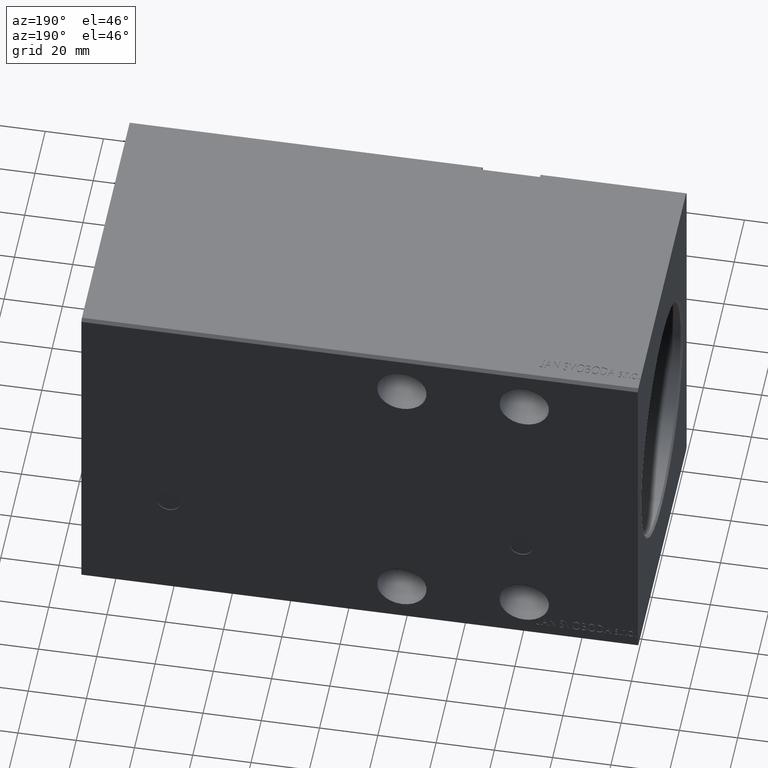
[diagram: clean part render]
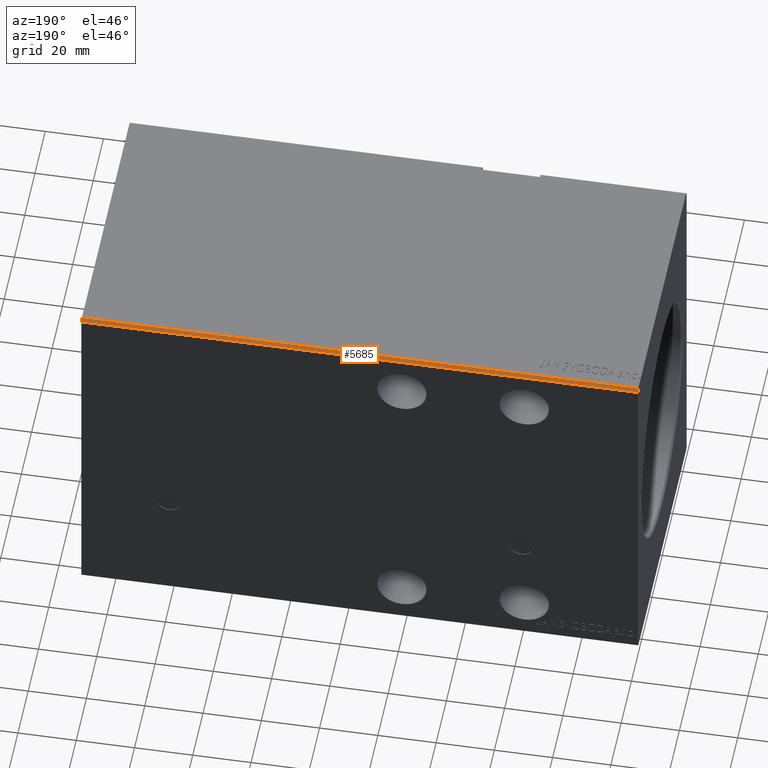
[diagram: same view with one face highlighted and labeled with its STEP entity id]
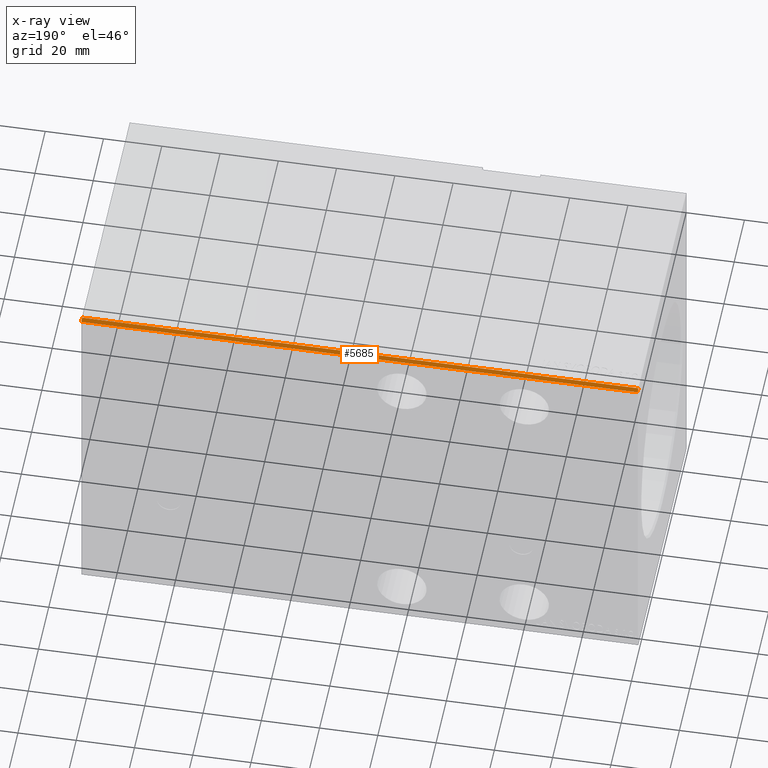
[diagram: x-ray of the same camera — body ghosted, the highlighted face saturated]
A machine part, auxiliary view. The second image highlights one B-rep face of the part: STEP entity #5685.
The next image is the same camera in x-ray: the body ghosted, the highlighted face saturated — about 0% of this face is hidden behind the body in this view.
In plain terms, the highlighted planar face has unit normal (0, -0.7071, -0.7071).
Its self-contained STEP definition (entity closure, byte-faithful):
#367 = ORIENTED_EDGE ( 'NONE', *, *, #39077, .F. ) ;
#607 = LINE ( 'NONE', #13579, #9433 ) ;
#820 = DIRECTION ( 'NONE',  ( -1.000000000000000000, -0.000000000000000000, -0.000000000000000000 ) ) ;
#1401 = CARTESIAN_POINT ( 'NONE',  ( 0.000000000000000000, 47.50000000000000000, 61.49999999999998579 ) ) ;
#1772 = DIRECTION ( 'NONE',  ( -1.000000000000000000, -0.000000000000000000, -0.000000000000000000 ) ) ;
#2018 = DIRECTION ( 'NONE',  ( 0.000000000000000000, -0.7071067811865474617, 0.7071067811865474617 ) ) ;
#5685 = ADVANCED_FACE ( 'NONE', ( #35435 ), #6316, .F. ) ;
#6316 = PLANE ( 'NONE',  #13214 ) ;
#6744 = CARTESIAN_POINT ( 'NONE',  ( 191.0000000000000000, 47.50000000000000000, 61.49999999999998579 ) ) ;
#6915 = DIRECTION ( 'NONE',  ( 0.000000000000000000, -0.7071067811865474617, 0.7071067811865474617 ) ) ;
#9262 = CARTESIAN_POINT ( 'NONE',  ( 191.0000000000000000, 47.50000000000000000, 61.49999999999998579 ) ) ;
#9433 = VECTOR ( 'NONE', #820, 1000.000000000000000 ) ;
#13214 = AXIS2_PLACEMENT_3D ( 'NONE', #6744, #19312, #22265 ) ;
#13300 = LINE ( 'NONE', #9262, #21956 ) ;
#13401 = EDGE_CURVE ( 'NONE', #38889, #37308, #40852, .T. ) ;
#13579 = CARTESIAN_POINT ( 'NONE',  ( 191.0000000000000000, 46.50000000000000000, 62.49999999999998579 ) ) ;
#15622 = ORIENTED_EDGE ( 'NONE', *, *, #13401, .T. ) ;
#15779 = ORIENTED_EDGE ( 'NONE', *, *, #23900, .F. ) ;
#16493 = CARTESIAN_POINT ( 'NONE',  ( 0.000000000000000000, 47.50000000000000000, 61.49999999999998579 ) ) ;
#17035 = EDGE_LOOP ( 'NONE', ( #25474, #15779, #367, #15622 ) ) ;
#17731 = CARTESIAN_POINT ( 'NONE',  ( 191.0000000000000000, 47.50000000000000000, 61.49999999999998579 ) ) ;
#19312 = DIRECTION ( 'NONE',  ( 0.000000000000000000, -0.7071067811865475727, -0.7071067811865475727 ) ) ;
#21956 = VECTOR ( 'NONE', #6915, 1000.000000000000114 ) ;
#22265 = DIRECTION ( 'NONE',  ( 0.000000000000000000, 0.7071067811865474617, -0.7071067811865474617 ) ) ;
#23373 = EDGE_CURVE ( 'NONE', #37308, #41220, #30921, .T. ) ;
#23900 = EDGE_CURVE ( 'NONE', #38908, #41220, #607, .T. ) ;
#24994 = CARTESIAN_POINT ( 'NONE',  ( 191.0000000000000000, 47.50000000000000000, 61.49999999999998579 ) ) ;
#25474 = ORIENTED_EDGE ( 'NONE', *, *, #23373, .T. ) ;
#30921 = LINE ( 'NONE', #1401, #40640 ) ;
#33717 = VECTOR ( 'NONE', #1772, 1000.000000000000000 ) ;
#35435 = FACE_OUTER_BOUND ( 'NONE', #17035, .T. ) ;
#37308 = VERTEX_POINT ( 'NONE', #16493 ) ;
#37954 = CARTESIAN_POINT ( 'NONE',  ( 191.0000000000000000, 46.50000000000000000, 62.49999999999998579 ) ) ;
#37970 = CARTESIAN_POINT ( 'NONE',  ( 0.000000000000000000, 46.50000000000000000, 62.49999999999998579 ) ) ;
#38889 = VERTEX_POINT ( 'NONE', #24994 ) ;
#38908 = VERTEX_POINT ( 'NONE', #37954 ) ;
#39077 = EDGE_CURVE ( 'NONE', #38889, #38908, #13300, .T. ) ;
#40640 = VECTOR ( 'NONE', #2018, 1000.000000000000114 ) ;
#40852 = LINE ( 'NONE', #17731, #33717 ) ;
#41220 = VERTEX_POINT ( 'NONE', #37970 ) ;